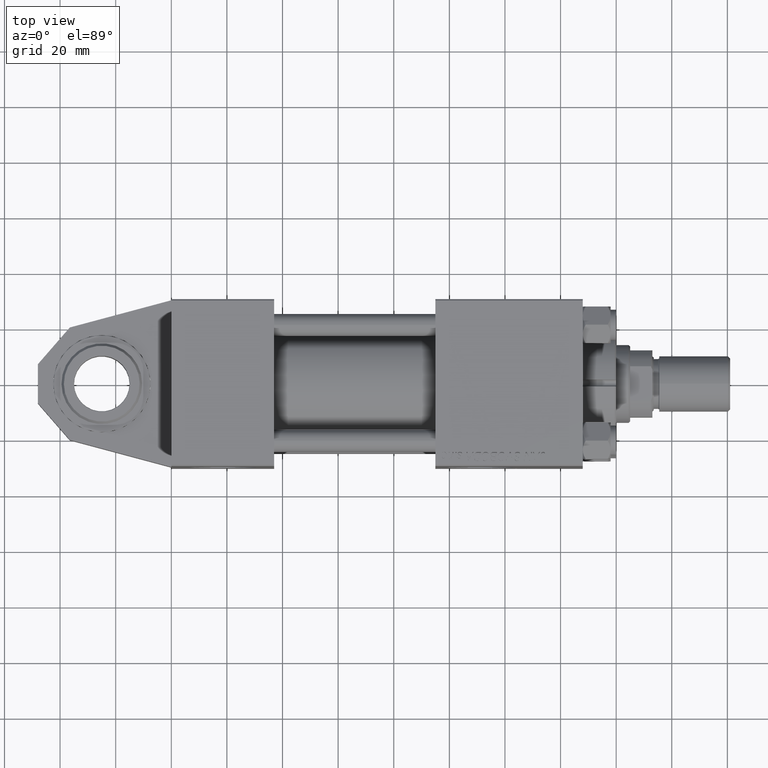
[diagram: clean part render]
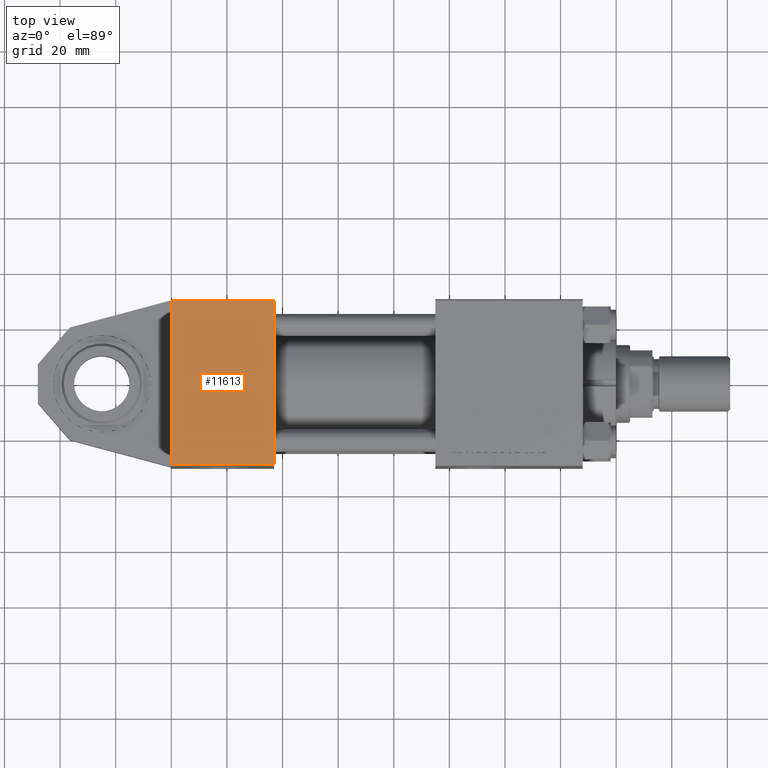
[diagram: same view with one face highlighted and labeled with its STEP entity id]
A machine part, top view. The second image highlights one B-rep face of the part: STEP entity #11613.
In plain terms, the highlighted planar face has unit normal (0, 0, 1).
Its self-contained STEP definition (entity closure, byte-faithful):
#400 = EDGE_CURVE ( 'NONE', #24685, #2230, #27473, .T. ) ;
#518 = DIRECTION ( 'NONE',  ( -1.000000000000000000, 0.000000000000000000, 0.000000000000000000 ) ) ;
#2230 = VERTEX_POINT ( 'NONE', #40272 ) ;
#2599 = VERTEX_POINT ( 'NONE', #28404 ) ;
#5750 = EDGE_CURVE ( 'NONE', #2599, #24685, #18593, .T. ) ;
#7205 = DIRECTION ( 'NONE',  ( 0.000000000000000000, -0.000000000000000000, 1.000000000000000000 ) ) ;
#8014 = VECTOR ( 'NONE', #37225, 1000.000000000000000 ) ;
#8126 = LINE ( 'NONE', #19949, #19425 ) ;
#8630 = DIRECTION ( 'NONE',  ( 1.000000000000000000, 0.000000000000000000, 0.000000000000000000 ) ) ;
#9766 = CARTESIAN_POINT ( 'NONE',  ( 0.000000000000000000, 29.99999999999999289, 30.00000000000000000 ) ) ;
#11316 = ORIENTED_EDGE ( 'NONE', *, *, #49525, .F. ) ;
#11613 = ADVANCED_FACE ( 'NONE', ( #38770 ), #18517, .T. ) ;
#14769 = ORIENTED_EDGE ( 'NONE', *, *, #39264, .T. ) ;
#15747 = AXIS2_PLACEMENT_3D ( 'NONE', #30307, #22629, #7205 ) ;
#18517 = PLANE ( 'NONE',  #15747 ) ;
#18593 = LINE ( 'NONE', #46054, #20587 ) ;
#19425 = VECTOR ( 'NONE', #8630, 1000.000000000000000 ) ;
#19602 = VECTOR ( 'NONE', #518, 1000.000000000000000 ) ;
#19949 = CARTESIAN_POINT ( 'NONE',  ( 37.00000000000000000, 29.99999999999999289, 29.50000000000000000 ) ) ;
#20587 = VECTOR ( 'NONE', #34231, 1000.000000000000000 ) ;
#21036 = CARTESIAN_POINT ( 'NONE',  ( 0.000000000000000000, 29.99999999999999289, 29.50000000000000000 ) ) ;
#21939 = CARTESIAN_POINT ( 'NONE',  ( 37.00000000000000000, 29.99999999999999289, -29.50000000000000000 ) ) ;
#22629 = DIRECTION ( 'NONE',  ( -0.000000000000000000, 1.000000000000000000, 0.000000000000000000 ) ) ;
#23271 = VERTEX_POINT ( 'NONE', #21036 ) ;
#24685 = VERTEX_POINT ( 'NONE', #21939 ) ;
#27473 = LINE ( 'NONE', #31572, #19602 ) ;
#28404 = CARTESIAN_POINT ( 'NONE',  ( 37.00000000000000000, 29.99999999999999289, 29.50000000000000000 ) ) ;
#30307 = CARTESIAN_POINT ( 'NONE',  ( 37.00000000000000000, 29.99999999999999289, 30.00000000000000000 ) ) ;
#31572 = CARTESIAN_POINT ( 'NONE',  ( 37.00000000000000000, 29.99999999999999289, -29.50000000000000000 ) ) ;
#33778 = ORIENTED_EDGE ( 'NONE', *, *, #5750, .T. ) ;
#34231 = DIRECTION ( 'NONE',  ( 0.000000000000000000, 0.000000000000000000, -1.000000000000000000 ) ) ;
#37225 = DIRECTION ( 'NONE',  ( 0.000000000000000000, 0.000000000000000000, -1.000000000000000000 ) ) ;
#38770 = FACE_OUTER_BOUND ( 'NONE', #43001, .T. ) ;
#39264 = EDGE_CURVE ( 'NONE', #23271, #2599, #8126, .T. ) ;
#39788 = ORIENTED_EDGE ( 'NONE', *, *, #400, .T. ) ;
#40272 = CARTESIAN_POINT ( 'NONE',  ( 0.000000000000000000, 29.99999999999999289, -29.50000000000000000 ) ) ;
#40318 = LINE ( 'NONE', #9766, #8014 ) ;
#43001 = EDGE_LOOP ( 'NONE', ( #33778, #39788, #11316, #14769 ) ) ;
#46054 = CARTESIAN_POINT ( 'NONE',  ( 37.00000000000000000, 29.99999999999999289, 30.00000000000000000 ) ) ;
#49525 = EDGE_CURVE ( 'NONE', #23271, #2230, #40318, .T. ) ;